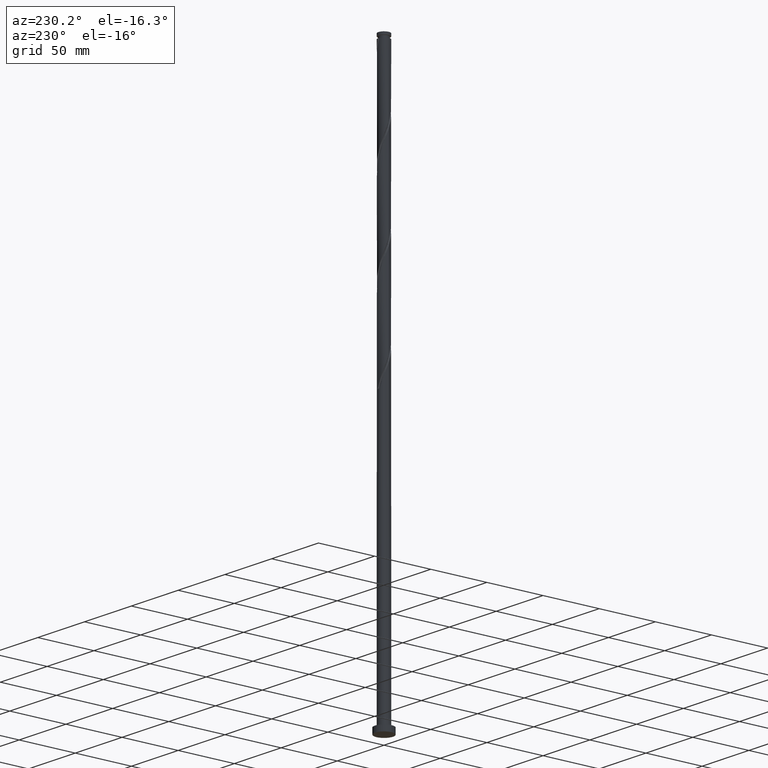
[diagram: clean part render]
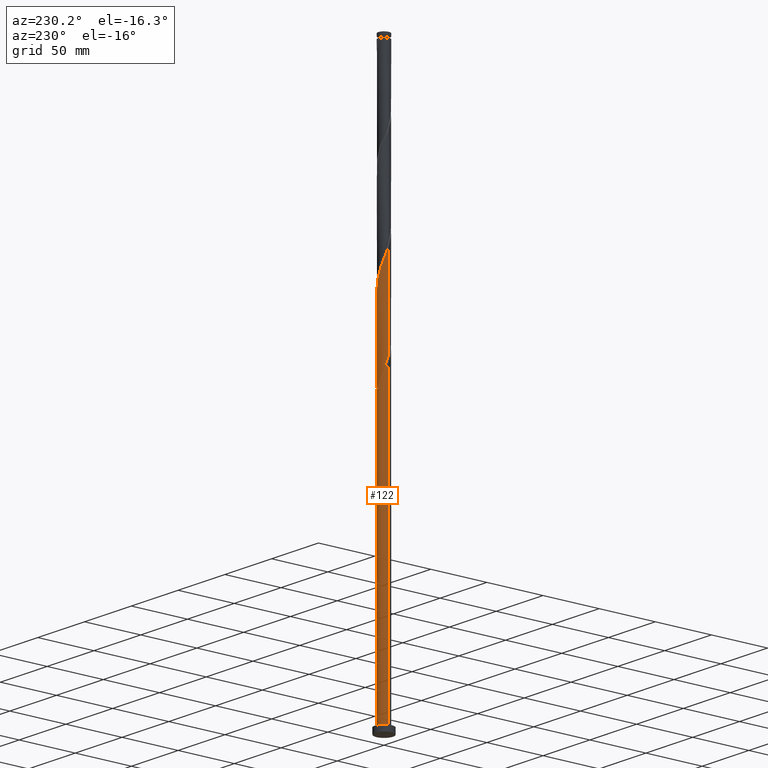
[diagram: same view with one face highlighted and labeled with its STEP entity id]
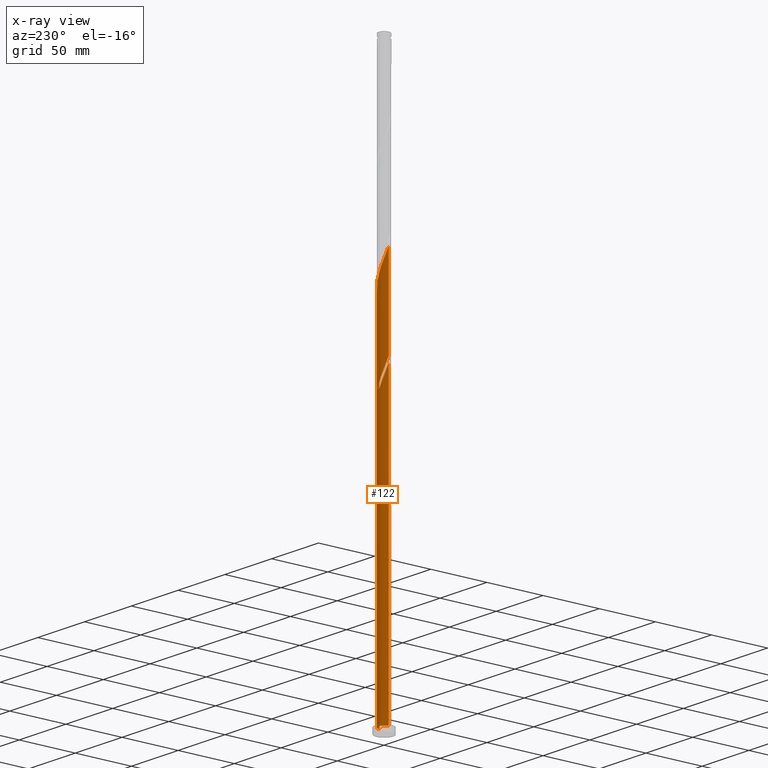
[diagram: x-ray of the same camera — body ghosted, the highlighted face saturated]
A machine part, auxiliary view. The second image highlights one B-rep face of the part: STEP entity #122.
The next image is the same camera in x-ray: the body ghosted, the highlighted face saturated — about 0% of this face is hidden behind the body in this view.
In plain terms, the highlighted cylindrical surface (edge-blend (fillet) strip) has radius 5 mm, axis along (-0, -0, -1).
Its self-contained STEP definition (entity closure, byte-faithful):
#48 = VERTEX_POINT ( 'NONE', #1389 ) ;
#74 = CARTESIAN_POINT ( 'NONE',  ( -0.9949874371066255163, 4.900000000000005684, 245.7280902688988533 ) ) ;
#99 = CARTESIAN_POINT ( 'NONE',  ( -3.871020385485624438, 3.202766786473272731, 260.0510069355655673 ) ) ;
#108 = CARTESIAN_POINT ( 'NONE',  ( -4.146244501713199249, 2.794397346837614204, 261.3530902688989386 ) ) ;
#114 = CARTESIAN_POINT ( 'NONE',  ( -2.794397346837615537, 4.146244501713202801, 250.9364236022321677 ) ) ;
#116 = CARTESIAN_POINT ( 'NONE',  ( 0.01992645462128569619, 4.999960293482964779, 248.3322569355655958 ) ) ;
#122 = ADVANCED_FACE ( 'NONE', ( #1337 ), #1374, .T. ) ;
#134 = CARTESIAN_POINT ( 'NONE',  ( -4.168385591787607147, 2.761260863840569346, 339.4780902688988249 ) ) ;
#153 = CARTESIAN_POINT ( 'NONE',  ( -0.5123795606565219041, 4.997997709003384692, 327.7593402688988249 ) ) ;
#214 = DIRECTION ( 'NONE',  ( -0.000000000000000000, -0.000000000000000000, -1.000000000000000000 ) ) ;
#225 = EDGE_CURVE ( 'NONE', #1234, #48, #1504, .T. ) ;
#266 = CARTESIAN_POINT ( 'NONE',  ( -4.900000000000001243, 0.9949874371066268486, 266.5614236022323098 ) ) ;
#290 = CARTESIAN_POINT ( 'NONE',  ( 3.521415697997572369, 3.549595960373003400, 316.0405902688988249 ) ) ;
#302 = CARTESIAN_POINT ( 'NONE',  ( -1.931811610379344124, 4.611735454468701256, 331.6655902688988249 ) ) ;
#311 = CARTESIAN_POINT ( 'NONE',  ( 3.871020385485630655, 3.202766786473274951, 314.7385069355655673 ) ) ;
#322 = CARTESIAN_POINT ( 'NONE',  ( -4.907774916897419182, 0.9559002903402689100, 344.6864236022321961 ) ) ;
#335 = CARTESIAN_POINT ( 'NONE',  ( -1.477595313556732348, 4.802002290996626677, 330.3635069355655105 ) ) ;
#412 = CARTESIAN_POINT ( 'NONE',  ( -4.907774916897419182, 0.9559002903402689100, 261.3530902688988817 ) ) ;
#449 = CARTESIAN_POINT ( 'NONE',  ( 4.900000000000005684, 0.9949874371066259604, 308.2280902688988249 ) ) ;
#478 = CARTESIAN_POINT ( 'NONE',  ( -3.896425134272733626, 3.171811010509512307, 338.1760069355655105 ) ) ;
#488 = CARTESIAN_POINT ( 'NONE',  ( 0.000000000000000000, 0.000000000000000000, 245.7280902688989102 ) ) ;
#521 = VERTEX_POINT ( 'NONE', #973 ) ;
#558 = LINE ( 'NONE', #1207, #1037 ) ;
#596 = CARTESIAN_POINT ( 'NONE',  ( -5.000000000000006217, 2.924349179285048291E-15, 263.9045599575686651 ) ) ;
#606 = CARTESIAN_POINT ( 'NONE',  ( -1.477595313556732348, 4.802002290996626677, 247.0301736022321109 ) ) ;
#608 = CARTESIAN_POINT ( 'NONE',  ( -4.611735454468697704, 1.931811610379343014, 263.9572569355656242 ) ) ;
#614 = CARTESIAN_POINT ( 'NONE',  ( 4.997997709003384692, 0.5123795606565222371, 306.9260069355653968 ) ) ;
#636 = CARTESIAN_POINT ( 'NONE',  ( -4.626986502567381976, 1.894992323219104380, 342.0822569355653968 ) ) ;
#641 = CARTESIAN_POINT ( 'NONE',  ( -5.000000000000007105, 2.924349179285048291E-15, 347.2378932909020364 ) ) ;
#648 = CARTESIAN_POINT ( 'NONE',  ( -5.000000000000000888, 0.000000000000000000, 500.0000000000000000 ) ) ;
#649 = ORIENTED_EDGE ( 'NONE', *, *, #1493, .T. ) ;
#659 = CARTESIAN_POINT ( 'NONE',  ( 5.000000000000007994, 0.009963266871299919503, 305.5975801787525370 ) ) ;
#691 = VERTEX_POINT ( 'NONE', #1648 ) ;
#703 = DIRECTION ( 'NONE',  ( 0.000000000000000000, 0.000000000000000000, 1.000000000000000000 ) ) ;
#704 = ORIENTED_EDGE ( 'NONE', *, *, #225, .F. ) ;
#733 = EDGE_LOOP ( 'NONE', ( #1216, #649, #797, #1040, #704, #1081, #958, #2041 ) ) ;
#735 = EDGE_CURVE ( 'NONE', #1996, #691, #558, .T. ) ;
#746 = CARTESIAN_POINT ( 'NONE',  ( -5.000000000000008882, 0.4823990746449056122, 262.6285798521527113 ) ) ;
#748 = CARTESIAN_POINT ( 'NONE',  ( -0.9559002903402668005, 4.907774916897412965, 250.9364236022322245 ) ) ;
#758 = CARTESIAN_POINT ( 'NONE',  ( -4.168385591787607147, 2.761260863840569346, 256.1447569355655105 ) ) ;
#760 = CARTESIAN_POINT ( 'NONE',  ( -2.350710717171619279, 4.440346049302474007, 254.8426736022322245 ) ) ;
#777 = DIRECTION ( 'NONE',  ( 0.000000000000000000, 1.000000000000000000, -1.110223024625156383E-14 ) ) ;
#796 = CARTESIAN_POINT ( 'NONE',  ( -2.794397346837615537, 4.146244501713202801, 334.2697569355655105 ) ) ;
#797 = ORIENTED_EDGE ( 'NONE', *, *, #1218, .T. ) ;
#801 = VECTOR ( 'NONE', #1746, 1000.000000000000000 ) ;
#807 = CARTESIAN_POINT ( 'NONE',  ( -5.000000000000012434, 0.4823990746448781342, 345.9619131854859688 ) ) ;
#843 = DIRECTION ( 'NONE',  ( -0.000000000000000000, -0.000000000000000000, -1.000000000000000000 ) ) ;
#871 = AXIS2_PLACEMENT_3D ( 'NONE', #1677, #703, #1150 ) ;
#906 = CARTESIAN_POINT ( 'NONE',  ( 0.5123795606565214600, 4.997997709003380251, 247.0301736022322245 ) ) ;
#923 = CARTESIAN_POINT ( 'NONE',  ( -5.000000000000002665, 0.009963266871318741252, 269.1919336923784840 ) ) ;
#929 = CARTESIAN_POINT ( 'NONE',  ( 3.171811010509511863, 3.896425134272734514, 317.3426736022321393 ) ) ;
#939 = CARTESIAN_POINT ( 'NONE',  ( -2.386027907201956566, 4.421468617940775836, 332.9676736022321961 ) ) ;
#947 = CARTESIAN_POINT ( 'NONE',  ( 0.9559002903402716855, 4.907774916897417405, 323.8530902688988249 ) ) ;
#957 = CARTESIAN_POINT ( 'NONE',  ( -5.000000000000007105, 2.924349179285048291E-15, 347.2378932909020364 ) ) ;
#958 = ORIENTED_EDGE ( 'NONE', *, *, #1718, .F. ) ;
#965 =( BOUNDED_CURVE ( )  B_SPLINE_CURVE ( 2, ( #1471, #659, #1909, #614, #449, #1929, #1092, #1116, #1769, #311, #290, #929, #1609, #1940, #1264, #1599, #947, #1588, #1792, #153, #2101, #335, #302, #939, #796, #1447, #1289, #478, #134, #1950, #636, #1779, #322, #807, #957 ),
 .UNSPECIFIED., .F., .T. ) 
 B_SPLINE_CURVE_WITH_KNOTS ( ( 3, 2, 2, 2, 2, 2, 2, 2, 2, 2, 2, 2, 2, 2, 2, 2, 2, 3 ),
 ( 0.1795286902180871225, 0.1796875000000000000, 0.1875000000000000000, 0.1953125000000000000, 0.2031250000000000000, 0.2109375000000000000, 0.2187500000000000000, 0.2265625000000000000, 0.2343750000000000000, 0.2421875000000000000, 0.2500000000000000000, 0.2578125000000000000, 0.2656250000000000000, 0.2734375000000000000, 0.2812500000000000000, 0.2890625000000000000, 0.2968750000000000000, 0.3045286902180876498 ),
 .UNSPECIFIED. ) 
 CURVE ( )  GEOMETRIC_REPRESENTATION_ITEM ( )  RATIONAL_B_SPLINE_CURVE ( ( 0.9089165573359558881, 0.9090019243628607581, 0.9090909090909526924, 0.9047133878838587995, 0.9090909090909526924, 0.9047133878838587995, 0.9090909090909526924, 0.9047133878838587995, 0.9090909090909526924, 0.9047133878838587995, 0.9090909090909526924, 0.9047133878838587995, 0.9090909090909526924, 0.9047133878838587995, 0.9090909090909526924, 0.9047133878838587995, 0.9090909090909526924, 0.9047133878838587995, 0.9090909090909526924, 0.9047133878838587995, 0.9090909090909526924, 0.9047133878838587995, 0.9090909090909526924, 0.9047133878838587995, 0.9090909090909526924, 0.9047133878838587995, 0.9090909090909526924, 0.9047133878838587995, 0.9090909090909526924, 0.9047133878838587995, 0.9090909090909526924, 0.9047133878838587995, 0.9090909090909526924, 0.9048023726119504007, 0.9089165573359565542 ) ) 
 REPRESENTATION_ITEM ( '' )  );
#973 = CARTESIAN_POINT ( 'NONE',  ( 5.000000000000007105, -4.689396134532302455E-15, 305.5712266242353508 ) ) ;
#989 = LINE ( 'NONE', #1328, #1416 ) ;
#1037 = VECTOR ( 'NONE', #843, 1000.000000000000000 ) ;
#1040 = ORIENTED_EDGE ( 'NONE', *, *, #1109, .F. ) ;
#1057 = CARTESIAN_POINT ( 'NONE',  ( -4.421468617940769619, 2.386027907201954346, 262.6551736022322530 ) ) ;
#1065 = CARTESIAN_POINT ( 'NONE',  ( -3.896425134272733626, 3.171811010509512307, 254.8426736022321677 ) ) ;
#1067 = CARTESIAN_POINT ( 'NONE',  ( -3.171811010509507867, 3.896425134272730073, 257.4468402688988817 ) ) ;
#1070 = VERTEX_POINT ( 'NONE', #1128 ) ;
#1074 = CARTESIAN_POINT ( 'NONE',  ( -0.9949874371066255163, 4.900000000000005684, 245.7280902688988533 ) ) ;
#1081 = ORIENTED_EDGE ( 'NONE', *, *, #1139, .T. ) ;
#1092 = CARTESIAN_POINT ( 'NONE',  ( 4.611735454468701256, 1.931811610379344124, 310.8322569355655673 ) ) ;
#1109 = EDGE_CURVE ( 'NONE', #48, #1070, #1277, .T. ) ;
#1112 = EDGE_CURVE ( 'NONE', #521, #1996, #965, .T. ) ;
#1116 = CARTESIAN_POINT ( 'NONE',  ( 4.421468617940776724, 2.386027907201955234, 312.1343402688987680 ) ) ;
#1128 = CARTESIAN_POINT ( 'NONE',  ( -5.000000000000000888, 0.000000000000000000, 5.000000000000000000 ) ) ;
#1139 = EDGE_CURVE ( 'NONE', #1234, #1635, #1386, .T. ) ;
#1140 = DIRECTION ( 'NONE',  ( -3.081487911019572110E-30, -1.387778780781443940E-14, -1.000000000000000000 ) ) ;
#1150 = DIRECTION ( 'NONE',  ( 1.000000000000000000, 0.000000000000000000, 0.000000000000000000 ) ) ;
#1198 = CARTESIAN_POINT ( 'NONE',  ( 0.000000000000000000, 0.000000000000000000, 500.0000000000000000 ) ) ;
#1207 = CARTESIAN_POINT ( 'NONE',  ( -5.000000000000000888, 0.000000000000000000, 500.0000000000000000 ) ) ;
#1212 = CARTESIAN_POINT ( 'NONE',  ( 0.9949874371066277368, 4.900000000000000355, 245.7280902688988533 ) ) ;
#1216 = ORIENTED_EDGE ( 'NONE', *, *, #1112, .F. ) ;
#1218 = EDGE_CURVE ( 'NONE', #1849, #1070, #1553, .T. ) ;
#1222 = CARTESIAN_POINT ( 'NONE',  ( 0.9949874371066277368, 4.900000000000000355, 245.7280902688988533 ) ) ;
#1234 = VERTEX_POINT ( 'NONE', #74 ) ;
#1257 = CARTESIAN_POINT ( 'NONE',  ( -1.931811610379344124, 4.611735454468701256, 248.3322569355654821 ) ) ;
#1264 = CARTESIAN_POINT ( 'NONE',  ( 1.894992323219103492, 4.626986502567381088, 321.2489236022322530 ) ) ;
#1277 = LINE ( 'NONE', #648, #801 ) ;
#1289 = CARTESIAN_POINT ( 'NONE',  ( -3.549595960373005177, 3.521415697997570593, 336.8739236022321961 ) ) ;
#1328 = CARTESIAN_POINT ( 'NONE',  ( 5.000000000000000888, 6.123233995736767268E-16, 500.0000000000000000 ) ) ;
#1337 = FACE_OUTER_BOUND ( 'NONE', #733, .T. ) ;
#1344 =( BOUNDED_CURVE ( )  B_SPLINE_CURVE ( 2, ( #1879, #923, #1887, #1571, #266, #1580, #608, #1057, #108, #99, #1903, #1067, #1716, #760, #1913, #1740, #748, #2073, #116, #906, #1222 ),
 .UNSPECIFIED., .F., .T. ) 
 B_SPLINE_CURVE_WITH_KNOTS ( ( 3, 2, 2, 2, 2, 2, 2, 2, 2, 2, 3 ),
 ( 0.9295286902180873723, 0.9296875000000000000, 0.9375000000000000000, 0.9453125000000000000, 0.9531250000000000000, 0.9609375000000000000, 0.9687500000000000000, 0.9765625000000000000, 0.9843750000000000000, 0.9921875000000000000, 1.000000000000000000 ),
 .UNSPECIFIED. ) 
 CURVE ( )  GEOMETRIC_REPRESENTATION_ITEM ( )  RATIONAL_B_SPLINE_CURVE ( ( 0.9089165573359508921, 0.9090019243628555401, 0.9090909090909472523, 0.9047133878838534704, 0.9090909090909472523, 0.9047133878838534704, 0.9090909090909472523, 0.9047133878838534704, 0.9090909090909472523, 0.9047133878838534704, 0.9090909090909472523, 0.9047133878838534704, 0.9090909090909472523, 0.9047133878838534704, 0.9090909090909472523, 0.9047133878838534704, 0.9090909090909472523, 0.9047133878838534704, 0.9090909090909472523, 0.9047133878838534704, 0.9090909090909472523 ) ) 
 REPRESENTATION_ITEM ( '' )  );
#1374 = CYLINDRICAL_SURFACE ( 'NONE', #1927, 5.000000000000000888 ) ;
#1386 = CIRCLE ( 'NONE', #1449, 5.000000000000000888 ) ;
#1389 = CARTESIAN_POINT ( 'NONE',  ( -5.000000000000007105, 2.924349179285048291E-15, 263.9045599575686651 ) ) ;
#1408 = CARTESIAN_POINT ( 'NONE',  ( -4.440346049302479337, 2.350710717171623276, 257.4468402688988249 ) ) ;
#1416 = VECTOR ( 'NONE', #1947, 1000.000000000000000 ) ;
#1447 = CARTESIAN_POINT ( 'NONE',  ( -3.202766786473275396, 3.871020385485629767, 335.5718402688987112 ) ) ;
#1449 = AXIS2_PLACEMENT_3D ( 'NONE', #488, #1140, #777 ) ;
#1471 = CARTESIAN_POINT ( 'NONE',  ( 5.000000000000007994, -4.689396134532302455E-15, 305.5712266242353508 ) ) ;
#1493 = EDGE_CURVE ( 'NONE', #521, #1849, #989, .T. ) ;
#1504 =( BOUNDED_CURVE ( )  B_SPLINE_CURVE ( 2, ( #1074, #606, #1257, #1911, #114, #2043, #1730, #1065, #758, #1408, #2034, #2059, #412, #746, #596 ),
 .UNSPECIFIED., .F., .T. ) 
 B_SPLINE_CURVE_WITH_KNOTS ( ( 3, 2, 2, 2, 2, 2, 2, 3 ),
 ( 0.000000000000000000, 0.007812500000000000000, 0.01562500000000000000, 0.02343750000000000000, 0.03125000000000000000, 0.03906250000000000000, 0.04687500000000000000, 0.05452869021808720573 ),
 .UNSPECIFIED. ) 
 CURVE ( )  GEOMETRIC_REPRESENTATION_ITEM ( )  RATIONAL_B_SPLINE_CURVE ( ( 0.9090909090909526924, 0.9047133878838587995, 0.9090909090909526924, 0.9047133878838587995, 0.9090909090909526924, 0.9047133878838587995, 0.9090909090909526924, 0.9047133878838587995, 0.9090909090909526924, 0.9047133878838587995, 0.9090909090909526924, 0.9047133878838587995, 0.9090909090909526924, 0.9048023726119505117, 0.9089165573359561101 ) ) 
 REPRESENTATION_ITEM ( '' )  );
#1532 = DIRECTION ( 'NONE',  ( -1.000000000000000000, 0.000000000000000000, 0.000000000000000000 ) ) ;
#1553 = CIRCLE ( 'NONE', #871, 5.000000000000000888 ) ;
#1571 = CARTESIAN_POINT ( 'NONE',  ( -4.997997709003380251, 0.5123795606565213490, 267.8635069355655673 ) ) ;
#1580 = CARTESIAN_POINT ( 'NONE',  ( -4.802002290996619571, 1.477595313556731682, 265.2593402688988817 ) ) ;
#1588 = CARTESIAN_POINT ( 'NONE',  ( 0.4725266514139521701, 5.001922877962551972, 325.1551736022322530 ) ) ;
#1599 = CARTESIAN_POINT ( 'NONE',  ( 1.439273929266587038, 4.813626955832283727, 322.5510069355653968 ) ) ;
#1609 = CARTESIAN_POINT ( 'NONE',  ( 2.761260863840569790, 4.168385591787605371, 318.6447569355655673 ) ) ;
#1635 = VERTEX_POINT ( 'NONE', #1212 ) ;
#1648 = CARTESIAN_POINT ( 'NONE',  ( -5.000000000000000000, 1.238328613586358735E-14, 269.2182872468956703 ) ) ;
#1677 = CARTESIAN_POINT ( 'NONE',  ( 0.000000000000000000, 0.000000000000000000, 5.000000000000000000 ) ) ;
#1716 = CARTESIAN_POINT ( 'NONE',  ( -2.761260863840565349, 4.168385591787602706, 256.1447569355655673 ) ) ;
#1718 = EDGE_CURVE ( 'NONE', #691, #1635, #1344, .T. ) ;
#1730 = CARTESIAN_POINT ( 'NONE',  ( -3.549595960373005177, 3.521415697997570593, 253.5405902688987965 ) ) ;
#1732 = CARTESIAN_POINT ( 'NONE',  ( 5.000000000000000888, 6.123233995736767268E-16, 5.000000000000000000 ) ) ;
#1740 = CARTESIAN_POINT ( 'NONE',  ( -1.439273929266583041, 4.813626955832280174, 252.2385069355655389 ) ) ;
#1746 = DIRECTION ( 'NONE',  ( -0.000000000000000000, -0.000000000000000000, -1.000000000000000000 ) ) ;
#1769 = CARTESIAN_POINT ( 'NONE',  ( 4.146244501713201913, 2.794397346837617313, 313.4364236022323098 ) ) ;
#1779 = CARTESIAN_POINT ( 'NONE',  ( -4.813626955832284615, 1.439273929266586372, 343.3843402688988249 ) ) ;
#1792 = CARTESIAN_POINT ( 'NONE',  ( -0.01992645462128253553, 4.999960293482969220, 326.4572569355655105 ) ) ;
#1849 = VERTEX_POINT ( 'NONE', #1732 ) ;
#1879 = CARTESIAN_POINT ( 'NONE',  ( -5.000000000000000000, 1.238328613586358577E-14, 269.2182872468956703 ) ) ;
#1887 = CARTESIAN_POINT ( 'NONE',  ( -4.999960293482964779, 0.01992645462128600845, 269.1655902688989386 ) ) ;
#1903 = CARTESIAN_POINT ( 'NONE',  ( -3.521415697997567040, 3.549595960373002068, 258.7489236022323098 ) ) ;
#1909 = CARTESIAN_POINT ( 'NONE',  ( 4.999960293482969220, 0.01992645462128285472, 305.6239236022321961 ) ) ;
#1911 = CARTESIAN_POINT ( 'NONE',  ( -2.386027907201956566, 4.421468617940775836, 249.6343402688988249 ) ) ;
#1913 = CARTESIAN_POINT ( 'NONE',  ( -1.894992323219101049, 4.626986502567377535, 253.5405902688989102 ) ) ;
#1927 = AXIS2_PLACEMENT_3D ( 'NONE', #1198, #214, #1532 ) ;
#1929 = CARTESIAN_POINT ( 'NONE',  ( 4.802002290996628453, 1.477595313556729684, 309.5301736022321393 ) ) ;
#1940 = CARTESIAN_POINT ( 'NONE',  ( 2.350710717171625053, 4.440346049302477560, 319.9468402688988817 ) ) ;
#1947 = DIRECTION ( 'NONE',  ( -0.000000000000000000, -0.000000000000000000, -1.000000000000000000 ) ) ;
#1950 = CARTESIAN_POINT ( 'NONE',  ( -4.440346049302479337, 2.350710717171623276, 340.7801736022321961 ) ) ;
#1996 = VERTEX_POINT ( 'NONE', #641 ) ;
#2034 = CARTESIAN_POINT ( 'NONE',  ( -4.626986502567381976, 1.894992323219104380, 258.7489236022322530 ) ) ;
#2041 = ORIENTED_EDGE ( 'NONE', *, *, #735, .F. ) ;
#2043 = CARTESIAN_POINT ( 'NONE',  ( -3.202766786473275396, 3.871020385485629767, 252.2385069355654821 ) ) ;
#2059 = CARTESIAN_POINT ( 'NONE',  ( -4.813626955832284615, 1.439273929266586372, 260.0510069355655673 ) ) ;
#2073 = CARTESIAN_POINT ( 'NONE',  ( -0.4725266514139499496, 5.001922877962546643, 249.6343402688988533 ) ) ;
#2101 = CARTESIAN_POINT ( 'NONE',  ( -0.9949874371066257384, 4.900000000000005684, 329.0614236022321961 ) ) ;